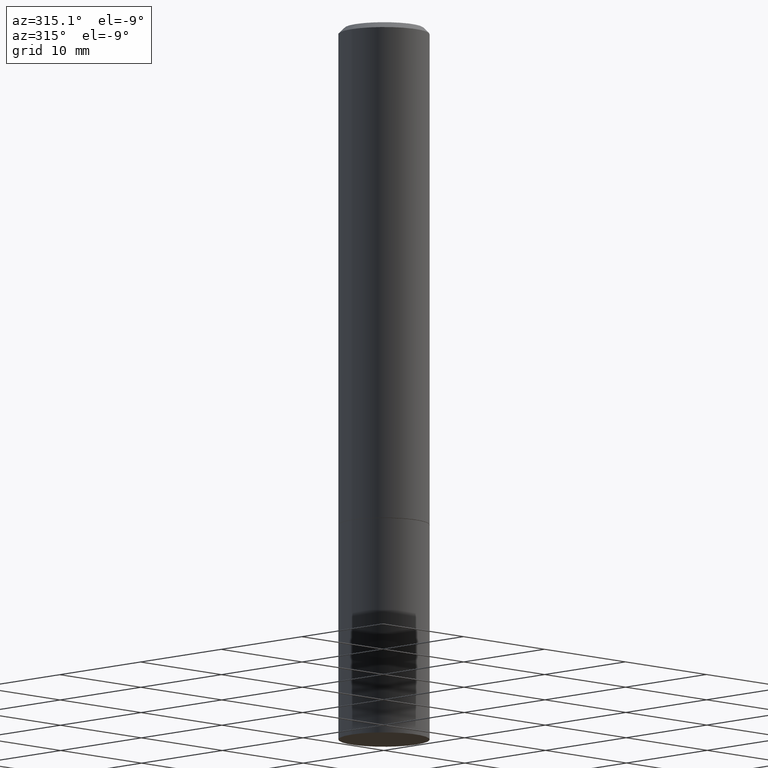
[diagram: clean part render]
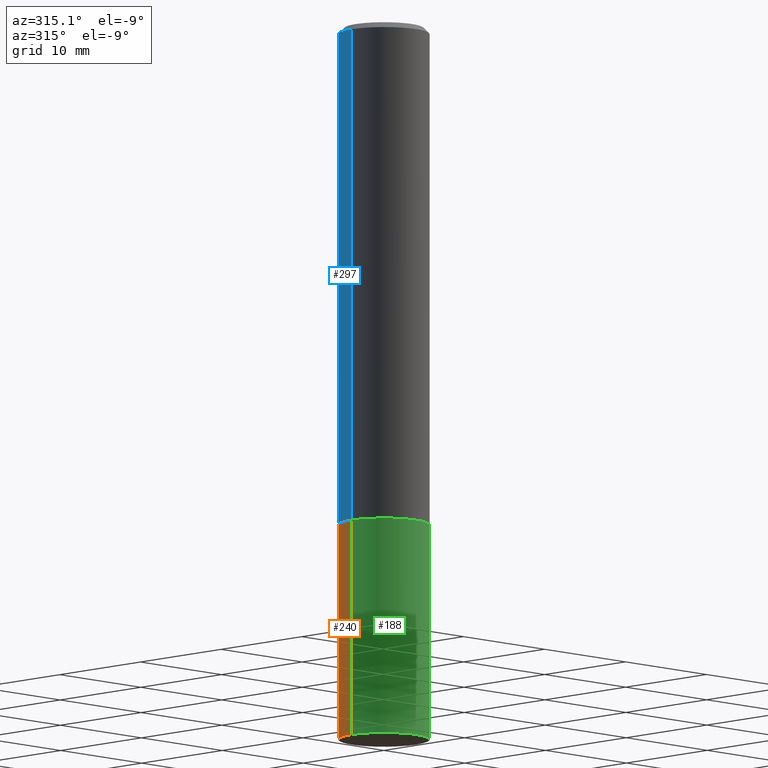
[diagram: same view with three faces highlighted in distinct colors, each labeled with its STEP entity id]
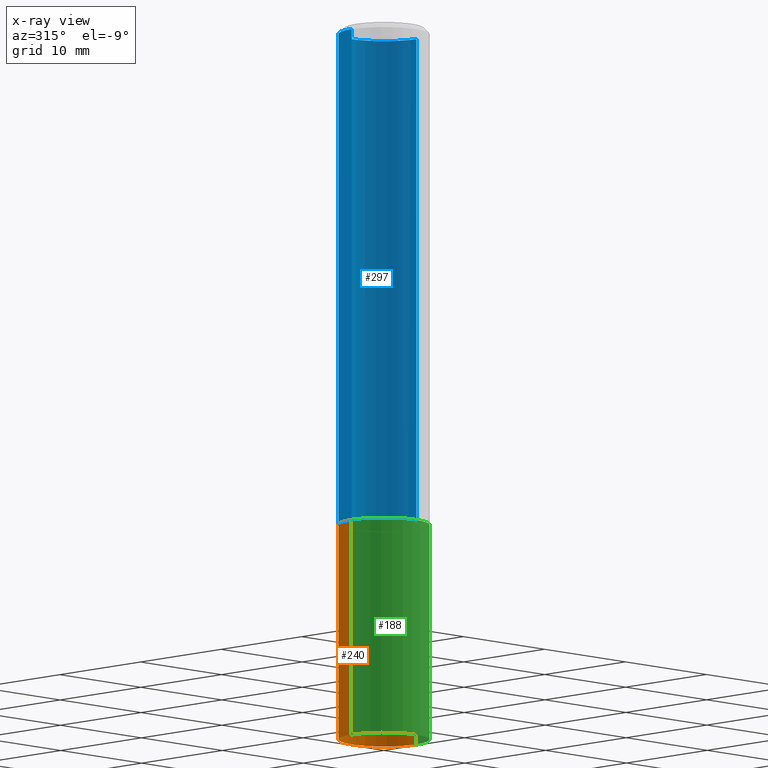
[diagram: x-ray of the same camera — body ghosted, the three highlighted faces saturated]
A machine part, auxiliary view with three faces highlighted in distinct colors.
The next image is the same camera in x-ray (body ghosted, the three faces saturated) — at least one of them is partly hidden behind the body in this view.
Their STEP definitions:

[orange] entity #240 — the highlighted cylindrical surface (partial cylindrical patch) has radius 4.0005 mm, axis along (-0, 0, 1).
#16 = DIRECTION ( 'NONE',  ( -2.445468806185136597E-29, 3.491481338843145583E-15, 1.000000000000000000 ) ) ;
#21 = CARTESIAN_POINT ( 'NONE',  ( 6.065496279980994755E-29, -8.659921164732655335E-15, -2.480300000000000171 ) ) ;
#23 = DIRECTION ( 'NONE',  ( -2.445468806185136597E-29, 3.491481338843145583E-15, 1.000000000000000000 ) ) ;
#25 = AXIS2_PLACEMENT_3D ( 'NONE', #120, #23, #238 ) ;
#30 = ORIENTED_EDGE ( 'NONE', *, *, #196, .T. ) ;
#37 = LINE ( 'NONE', #214, #192 ) ;
#40 = VERTEX_POINT ( 'NONE', #107 ) ;
#52 = AXIS2_PLACEMENT_3D ( 'NONE', #267, #16, #357 ) ;
#61 = EDGE_CURVE ( 'NONE', #135, #198, #37, .T. ) ;
#74 = ORIENTED_EDGE ( 'NONE', *, *, #326, .F. ) ;
#79 = VECTOR ( 'NONE', #269, 39.37007874015748143 ) ;
#101 = CIRCLE ( 'NONE', #327, 0.1575000000000000011 ) ;
#107 = CARTESIAN_POINT ( 'NONE',  ( -0.1575000000000000011, -6.235002335183160998E-15, -2.480300000000000171 ) ) ;
#120 = CARTESIAN_POINT ( 'NONE',  ( 0.000000000000000000, 0.000000000000000000, 0.000000000000000000 ) ) ;
#124 = ORIENTED_EDGE ( 'NONE', *, *, #61, .F. ) ;
#135 = VERTEX_POINT ( 'NONE', #243 ) ;
#149 = EDGE_LOOP ( 'NONE', ( #336, #30, #74, #124 ) ) ;
#168 = DIRECTION ( 'NONE',  ( 1.000000000000000000, -6.982962677686261977E-15, 0.000000000000000000 ) ) ;
#191 = DIRECTION ( 'NONE',  ( -2.445468806185136597E-29, 3.491481338843145583E-15, 1.000000000000000000 ) ) ;
#192 = VECTOR ( 'NONE', #289, 39.37007874015748143 ) ;
#196 = EDGE_CURVE ( 'NONE', #40, #281, #236, .T. ) ;
#198 = VERTEX_POINT ( 'NONE', #204 ) ;
#204 = CARTESIAN_POINT ( 'NONE',  ( 0.1575000000000000011, -7.148109745013570136E-15, -1.732300000000000173 ) ) ;
#205 = EDGE_CURVE ( 'NONE', #135, #40, #101, .T. ) ;
#207 = CARTESIAN_POINT ( 'NONE',  ( -0.1575000000000000011, -6.235002335183160998E-15, -1.732300000000000173 ) ) ;
#214 = CARTESIAN_POINT ( 'NONE',  ( 0.1575000000000000011, -1.099816621735586889E-15, 7.679978421878598033E-30 ) ) ;
#236 = LINE ( 'NONE', #359, #79 ) ;
#238 = DIRECTION ( 'NONE',  ( 1.000000000000000000, -6.982962677686265922E-15, 4.876176775795935232E-29 ) ) ;
#240 = ADVANCED_FACE ( 'NONE', ( #301 ), #271, .T. ) ;
#243 = CARTESIAN_POINT ( 'NONE',  ( 0.1575000000000000011, -9.759737786468242027E-15, -2.480300000000000171 ) ) ;
#267 = CARTESIAN_POINT ( 'NONE',  ( 4.236285612954512953E-29, -6.048293123277982656E-15, -1.732300000000000173 ) ) ;
#269 = DIRECTION ( 'NONE',  ( -2.445468806185136877E-29, 3.491481338843145188E-15, 1.000000000000000000 ) ) ;
#270 = CIRCLE ( 'NONE', #52, 0.1575000000000000011 ) ;
#271 = CYLINDRICAL_SURFACE ( 'NONE', #25, 0.1575000000000000011 ) ;
#281 = VERTEX_POINT ( 'NONE', #207 ) ;
#289 = DIRECTION ( 'NONE',  ( -2.445468806185136877E-29, 3.491481338843145188E-15, 1.000000000000000000 ) ) ;
#301 = FACE_OUTER_BOUND ( 'NONE', #149, .T. ) ;
#326 = EDGE_CURVE ( 'NONE', #198, #281, #270, .T. ) ;
#327 = AXIS2_PLACEMENT_3D ( 'NONE', #21, #191, #168 ) ;
#336 = ORIENTED_EDGE ( 'NONE', *, *, #205, .T. ) ;
#357 = DIRECTION ( 'NONE',  ( 1.000000000000000000, -6.982962677686268288E-15, 0.000000000000000000 ) ) ;
#359 = CARTESIAN_POINT ( 'NONE',  ( -0.1575000000000000011, 1.119104808822157801E-15, -7.747322767151475583E-30 ) ) ;

[blue] entity #297 — the highlighted cylindrical surface (partial cylindrical patch) has radius 4.0005 mm, axis along (-0, 0, 1).
#9 = CARTESIAN_POINT ( 'NONE',  ( -0.1575000000000000011, -1.938210825535841109E-15, -1.731300000000000283 ) ) ;
#14 = EDGE_CURVE ( 'NONE', #300, #318, #341, .T. ) ;
#50 = AXIS2_PLACEMENT_3D ( 'NONE', #190, #75, #246 ) ;
#75 = DIRECTION ( 'NONE',  ( -2.445468806185136597E-29, 3.491481338843145583E-15, 1.000000000000000000 ) ) ;
#76 = DIRECTION ( 'NONE',  ( -2.445468806185136597E-29, 3.491481338843145583E-15, 1.000000000000000000 ) ) ;
#87 = CARTESIAN_POINT ( 'NONE',  ( -0.1574999999999997513, 1.029986994958722210E-15, -0.02000000000000003511 ) ) ;
#88 = CIRCLE ( 'NONE', #50, 0.1574999999999997513 ) ;
#109 = EDGE_CURVE ( 'NONE', #218, #330, #88, .T. ) ;
#140 = ORIENTED_EDGE ( 'NONE', *, *, #172, .F. ) ;
#141 = ORIENTED_EDGE ( 'NONE', *, *, #109, .F. ) ;
#163 = DIRECTION ( 'NONE',  ( -2.445468806185136597E-29, 3.491481338843145583E-15, 1.000000000000000000 ) ) ;
#172 = EDGE_CURVE ( 'NONE', #300, #218, #197, .T. ) ;
#177 = LINE ( 'NONE', #274, #202 ) ;
#178 = DIRECTION ( 'NONE',  ( 1.000000000000000000, -6.982962677686266711E-15, 4.876176775795935793E-29 ) ) ;
#182 = CARTESIAN_POINT ( 'NONE',  ( 0.1575000000000000011, -7.144618263674725551E-15, -1.731300000000000283 ) ) ;
#186 = ORIENTED_EDGE ( 'NONE', *, *, #14, .T. ) ;
#190 = CARTESIAN_POINT ( 'NONE',  ( 4.890937612370281041E-31, -6.982962677686302702E-17, -0.02000000000000003511 ) ) ;
#197 = LINE ( 'NONE', #352, #208 ) ;
#202 = VECTOR ( 'NONE', #242, 39.37007874015748143 ) ;
#208 = VECTOR ( 'NONE', #229, 39.37007874015748143 ) ;
#209 = ORIENTED_EDGE ( 'NONE', *, *, #292, .T. ) ;
#213 = CYLINDRICAL_SURFACE ( 'NONE', #283, 0.1574999999999998901 ) ;
#218 = VERTEX_POINT ( 'NONE', #276 ) ;
#227 = EDGE_LOOP ( 'NONE', ( #186, #209, #141, #140 ) ) ;
#229 = DIRECTION ( 'NONE',  ( -2.445468806185136877E-29, 3.491481338843145188E-15, 1.000000000000000000 ) ) ;
#242 = DIRECTION ( 'NONE',  ( -2.445468806185136877E-29, 3.491481338843145188E-15, 1.000000000000000000 ) ) ;
#246 = DIRECTION ( 'NONE',  ( 1.000000000000000000, -6.982962677686266711E-15, 0.000000000000000000 ) ) ;
#254 = CARTESIAN_POINT ( 'NONE',  ( 4.233840144148327350E-29, -6.044801641939138860E-15, -1.731300000000000283 ) ) ;
#263 = DIRECTION ( 'NONE',  ( 1.000000000000000000, -6.982962677686268288E-15, 0.000000000000000000 ) ) ;
#274 = CARTESIAN_POINT ( 'NONE',  ( -0.1574999999999998901, 1.119104808822157012E-15, -7.747322767151471379E-30 ) ) ;
#276 = CARTESIAN_POINT ( 'NONE',  ( 0.1574999999999997513, -1.150358061425877697E-15, -0.02000000000000003511 ) ) ;
#283 = AXIS2_PLACEMENT_3D ( 'NONE', #339, #76, #178 ) ;
#292 = EDGE_CURVE ( 'NONE', #318, #330, #177, .T. ) ;
#297 = ADVANCED_FACE ( 'NONE', ( #364 ), #213, .T. ) ;
#300 = VERTEX_POINT ( 'NONE', #182 ) ;
#311 = AXIS2_PLACEMENT_3D ( 'NONE', #254, #163, #263 ) ;
#318 = VERTEX_POINT ( 'NONE', #9 ) ;
#330 = VERTEX_POINT ( 'NONE', #87 ) ;
#339 = CARTESIAN_POINT ( 'NONE',  ( 0.000000000000000000, 0.000000000000000000, 0.000000000000000000 ) ) ;
#341 = CIRCLE ( 'NONE', #311, 0.1575000000000000011 ) ;
#352 = CARTESIAN_POINT ( 'NONE',  ( 0.1574999999999998901, -1.099816621735586297E-15, 7.679978421878593829E-30 ) ) ;
#364 = FACE_OUTER_BOUND ( 'NONE', #227, .T. ) ;

[green] entity #188 — the highlighted cylindrical surface (partial cylindrical patch) has radius 4.0005 mm, axis along (-0, 0, 1).
#28 = AXIS2_PLACEMENT_3D ( 'NONE', #119, #331, #71 ) ;
#35 = CIRCLE ( 'NONE', #28, 0.1575000000000000011 ) ;
#37 = LINE ( 'NONE', #214, #192 ) ;
#40 = VERTEX_POINT ( 'NONE', #107 ) ;
#41 = FACE_OUTER_BOUND ( 'NONE', #280, .T. ) ;
#45 = CARTESIAN_POINT ( 'NONE',  ( 0.000000000000000000, 0.000000000000000000, 0.000000000000000000 ) ) ;
#61 = EDGE_CURVE ( 'NONE', #135, #198, #37, .T. ) ;
#71 = DIRECTION ( 'NONE',  ( 1.000000000000000000, -6.982962677686268288E-15, 0.000000000000000000 ) ) ;
#79 = VECTOR ( 'NONE', #269, 39.37007874015748143 ) ;
#107 = CARTESIAN_POINT ( 'NONE',  ( -0.1575000000000000011, -6.235002335183160998E-15, -2.480300000000000171 ) ) ;
#118 = DIRECTION ( 'NONE',  ( 1.000000000000000000, -6.982962677686265922E-15, 4.876176775795935232E-29 ) ) ;
#119 = CARTESIAN_POINT ( 'NONE',  ( 4.236285612954512953E-29, -6.048293123277982656E-15, -1.732300000000000173 ) ) ;
#135 = VERTEX_POINT ( 'NONE', #243 ) ;
#173 = ORIENTED_EDGE ( 'NONE', *, *, #181, .F. ) ;
#175 = DIRECTION ( 'NONE',  ( -2.445468806185136597E-29, 3.491481338843145583E-15, 1.000000000000000000 ) ) ;
#181 = EDGE_CURVE ( 'NONE', #281, #198, #35, .T. ) ;
#188 = ADVANCED_FACE ( 'NONE', ( #41 ), #268, .T. ) ;
#192 = VECTOR ( 'NONE', #289, 39.37007874015748143 ) ;
#196 = EDGE_CURVE ( 'NONE', #40, #281, #236, .T. ) ;
#198 = VERTEX_POINT ( 'NONE', #204 ) ;
#204 = CARTESIAN_POINT ( 'NONE',  ( 0.1575000000000000011, -7.148109745013570136E-15, -1.732300000000000173 ) ) ;
#207 = CARTESIAN_POINT ( 'NONE',  ( -0.1575000000000000011, -6.235002335183160998E-15, -1.732300000000000173 ) ) ;
#210 = AXIS2_PLACEMENT_3D ( 'NONE', #287, #256, #216 ) ;
#214 = CARTESIAN_POINT ( 'NONE',  ( 0.1575000000000000011, -1.099816621735586889E-15, 7.679978421878598033E-30 ) ) ;
#215 = AXIS2_PLACEMENT_3D ( 'NONE', #45, #175, #118 ) ;
#216 = DIRECTION ( 'NONE',  ( 1.000000000000000000, -6.982962677686261977E-15, 0.000000000000000000 ) ) ;
#226 = CIRCLE ( 'NONE', #210, 0.1575000000000000011 ) ;
#236 = LINE ( 'NONE', #359, #79 ) ;
#243 = CARTESIAN_POINT ( 'NONE',  ( 0.1575000000000000011, -9.759737786468242027E-15, -2.480300000000000171 ) ) ;
#256 = DIRECTION ( 'NONE',  ( -2.445468806185136597E-29, 3.491481338843145583E-15, 1.000000000000000000 ) ) ;
#268 = CYLINDRICAL_SURFACE ( 'NONE', #215, 0.1575000000000000011 ) ;
#269 = DIRECTION ( 'NONE',  ( -2.445468806185136877E-29, 3.491481338843145188E-15, 1.000000000000000000 ) ) ;
#280 = EDGE_LOOP ( 'NONE', ( #296, #322, #354, #173 ) ) ;
#281 = VERTEX_POINT ( 'NONE', #207 ) ;
#287 = CARTESIAN_POINT ( 'NONE',  ( 6.065496279980994755E-29, -8.659921164732655335E-15, -2.480300000000000171 ) ) ;
#289 = DIRECTION ( 'NONE',  ( -2.445468806185136877E-29, 3.491481338843145188E-15, 1.000000000000000000 ) ) ;
#296 = ORIENTED_EDGE ( 'NONE', *, *, #196, .F. ) ;
#309 = EDGE_CURVE ( 'NONE', #40, #135, #226, .T. ) ;
#322 = ORIENTED_EDGE ( 'NONE', *, *, #309, .T. ) ;
#331 = DIRECTION ( 'NONE',  ( -2.445468806185136597E-29, 3.491481338843145583E-15, 1.000000000000000000 ) ) ;
#354 = ORIENTED_EDGE ( 'NONE', *, *, #61, .T. ) ;
#359 = CARTESIAN_POINT ( 'NONE',  ( -0.1575000000000000011, 1.119104808822157801E-15, -7.747322767151475583E-30 ) ) ;